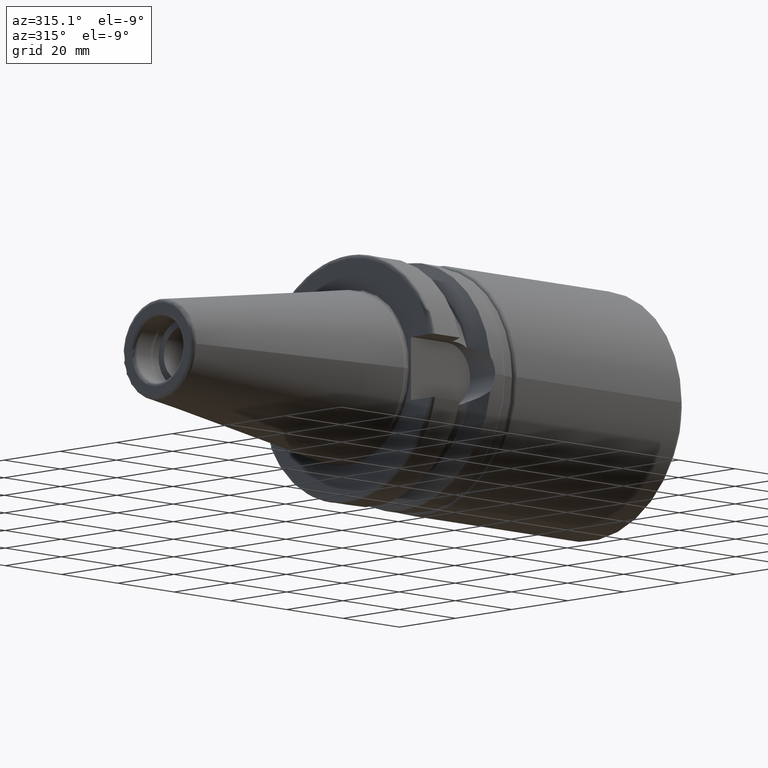
[diagram: clean part render]
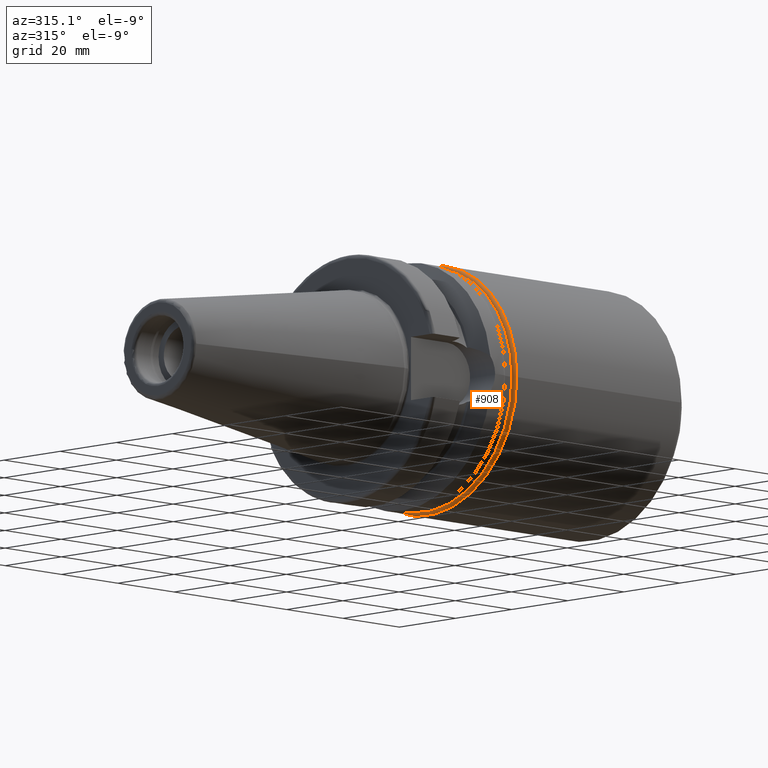
[diagram: same view with one face highlighted and labeled with its STEP entity id]
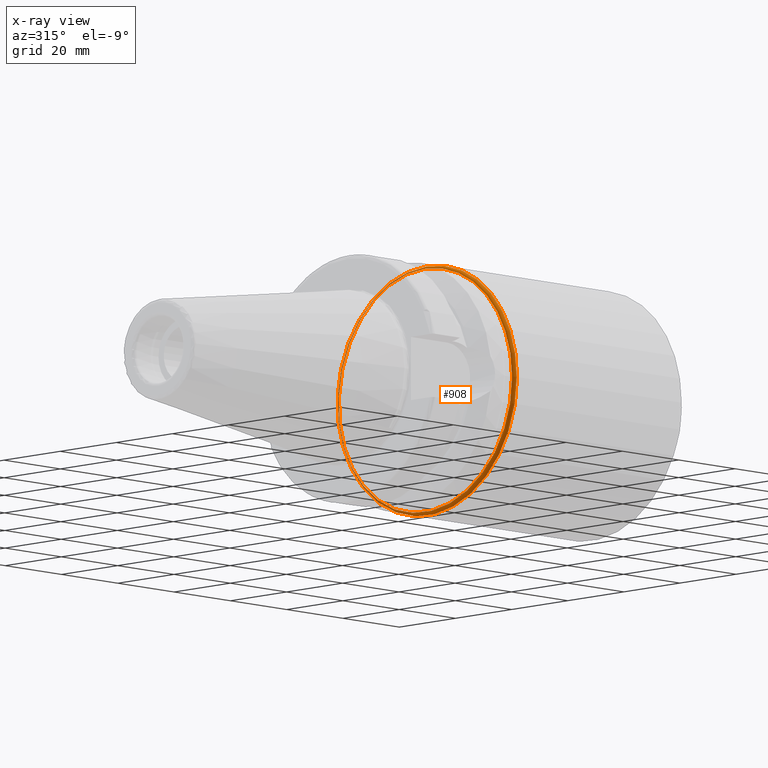
[diagram: x-ray of the same camera — body ghosted, the highlighted face saturated]
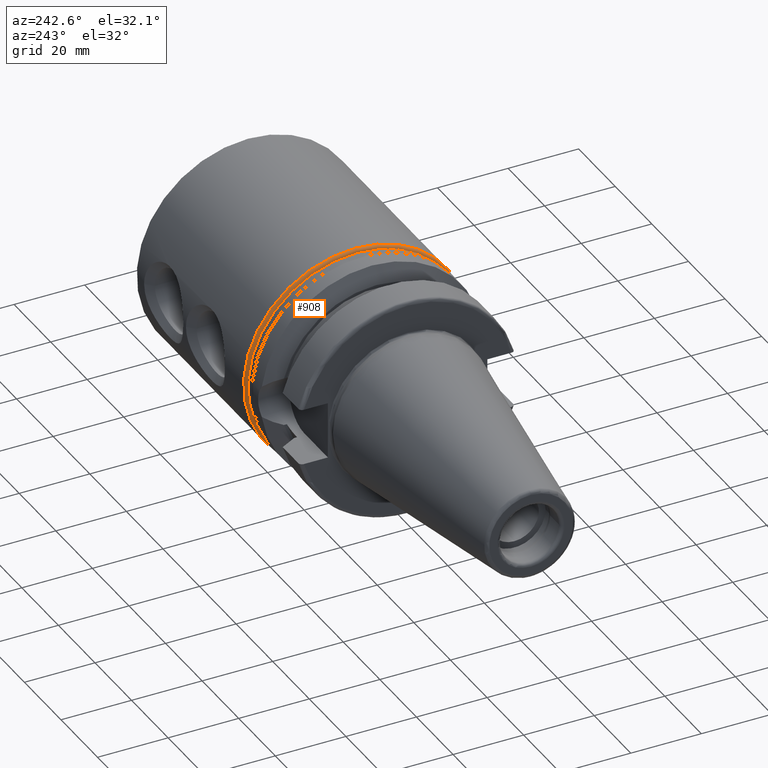
[diagram: same view with one face highlighted and labeled with its STEP entity id]
A machine part, auxiliary view. The second image highlights one B-rep face of the part: STEP entity #908.
The next image is the same camera in x-ray: the body ghosted, the highlighted face saturated — about 17% of this face is hidden behind the body in this view.
A second angle (auxiliary view) of the same face is appended — the face is thin or edge-on in the first view.
In plain terms, the highlighted toroidal blend (fillet) surface has major radius 30.75 mm and minor (blend) radius 1 mm.
Its self-contained STEP definition (entity closure, byte-faithful):
#210=FACE_OUTER_BOUND('',#272,.T.);
#272=EDGE_LOOP('',(#685,#686,#687,#688,#689,#690));
#329=CIRCLE('',#991,31.75);
#330=CIRCLE('',#992,31.75);
#340=CIRCLE('',#1010,1.00000000000001);
#341=CIRCLE('',#1011,31.);
#342=CIRCLE('',#1012,31.);
#393=VERTEX_POINT('',#1479);
#394=VERTEX_POINT('',#1481);
#410=VERTEX_POINT('',#1922);
#411=VERTEX_POINT('',#1924);
#489=EDGE_CURVE('',#393,#394,#329,.T.);
#490=EDGE_CURVE('',#394,#393,#330,.T.);
#513=EDGE_CURVE('',#394,#410,#340,.T.);
#514=EDGE_CURVE('',#410,#411,#341,.T.);
#515=EDGE_CURVE('',#411,#410,#342,.T.);
#685=ORIENTED_EDGE('',*,*,#489,.F.);
#686=ORIENTED_EDGE('',*,*,#490,.F.);
#687=ORIENTED_EDGE('',*,*,#513,.T.);
#688=ORIENTED_EDGE('',*,*,#514,.T.);
#689=ORIENTED_EDGE('',*,*,#515,.T.);
#690=ORIENTED_EDGE('',*,*,#513,.F.);
#886=TOROIDAL_SURFACE('',#1009,30.75,1.00000000000001);
#908=ADVANCED_FACE('',(#210),#886,.T.);
#991=AXIS2_PLACEMENT_3D('',#1482,#1133,#1134);
#992=AXIS2_PLACEMENT_3D('',#1483,#1135,#1136);
#1009=AXIS2_PLACEMENT_3D('',#1921,#1175,#1176);
#1010=AXIS2_PLACEMENT_3D('',#1923,#1177,#1178);
#1011=AXIS2_PLACEMENT_3D('',#1925,#1179,#1180);
#1012=AXIS2_PLACEMENT_3D('',#1926,#1181,#1182);
#1133=DIRECTION('center_axis',(1.,0.,0.));
#1134=DIRECTION('ref_axis',(0.,0.,-1.));
#1135=DIRECTION('center_axis',(1.,0.,0.));
#1136=DIRECTION('ref_axis',(0.,0.,-1.));
#1175=DIRECTION('center_axis',(1.,0.,0.));
#1176=DIRECTION('ref_axis',(0.,0.,-1.));
#1177=DIRECTION('center_axis',(0.,-1.,-1.22464679914735E-16));
#1178=DIRECTION('ref_axis',(0.,-1.22464679914735E-16,1.));
#1179=DIRECTION('center_axis',(1.,0.,0.));
#1180=DIRECTION('ref_axis',(0.,0.,-1.));
#1181=DIRECTION('center_axis',(1.,0.,0.));
#1182=DIRECTION('ref_axis',(0.,0.,-1.));
#1479=CARTESIAN_POINT('',(30.4682458365519,-31.75,-3.88825358729285E-15));
#1481=CARTESIAN_POINT('',(30.4682458365519,-3.88825358729285E-15,31.75));
#1482=CARTESIAN_POINT('Origin',(30.4682458365519,0.,0.));
#1483=CARTESIAN_POINT('Origin',(30.4682458365519,0.,0.));
#1921=CARTESIAN_POINT('Origin',(30.4682458365519,0.,0.));
#1922=CARTESIAN_POINT('',(29.5,-3.79640507735679E-15,31.));
#1923=CARTESIAN_POINT('Origin',(30.4682458365519,-3.76578890737811E-15,
30.75));
#1924=CARTESIAN_POINT('',(29.5,-31.,-3.79640507735679E-15));
#1925=CARTESIAN_POINT('Origin',(29.5,0.,0.));
#1926=CARTESIAN_POINT('Origin',(29.5,0.,0.));